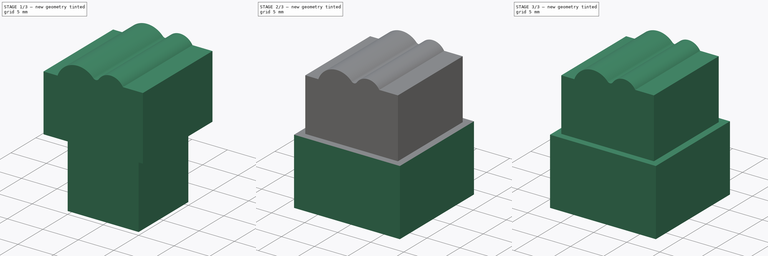
[diagram: build sequence overview — one tinted view per stage of 3, left to right]
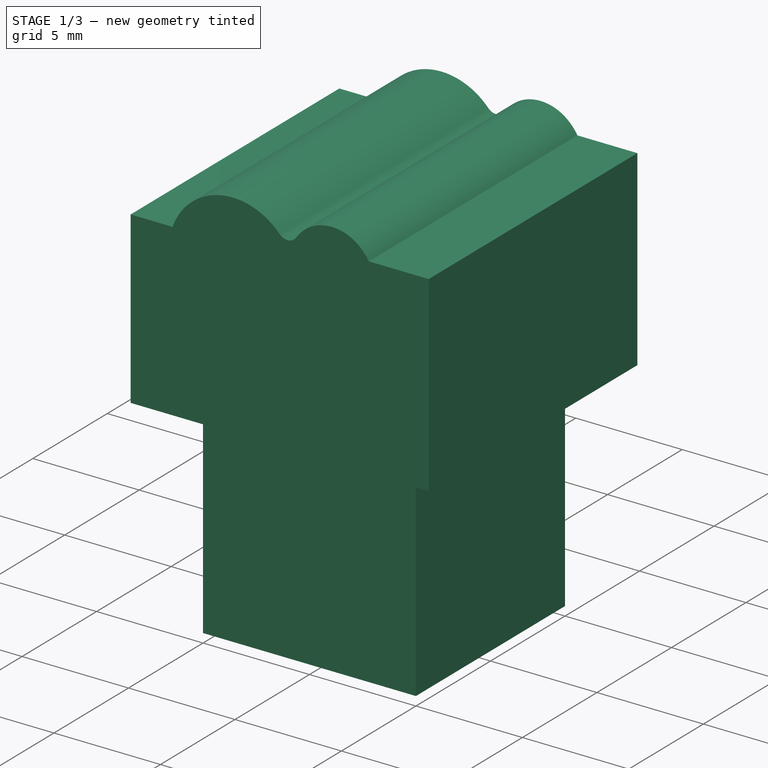
[diagram: stage 1 of 3 — iso view after this stage's code; geometry added in this stage tinted green]
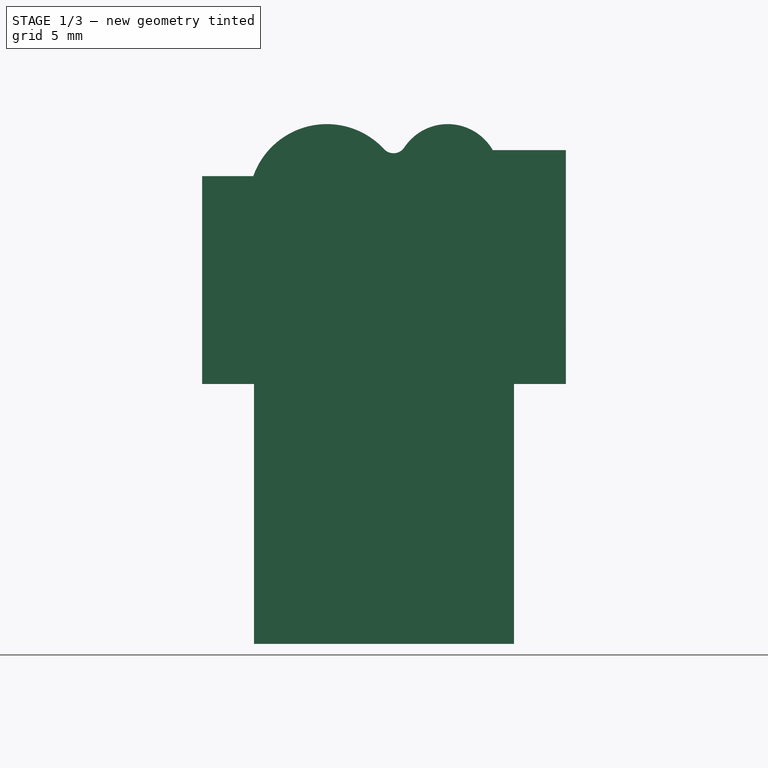
[diagram: stage 1 of 3 — front view after this stage's code; geometry added in this stage tinted green]
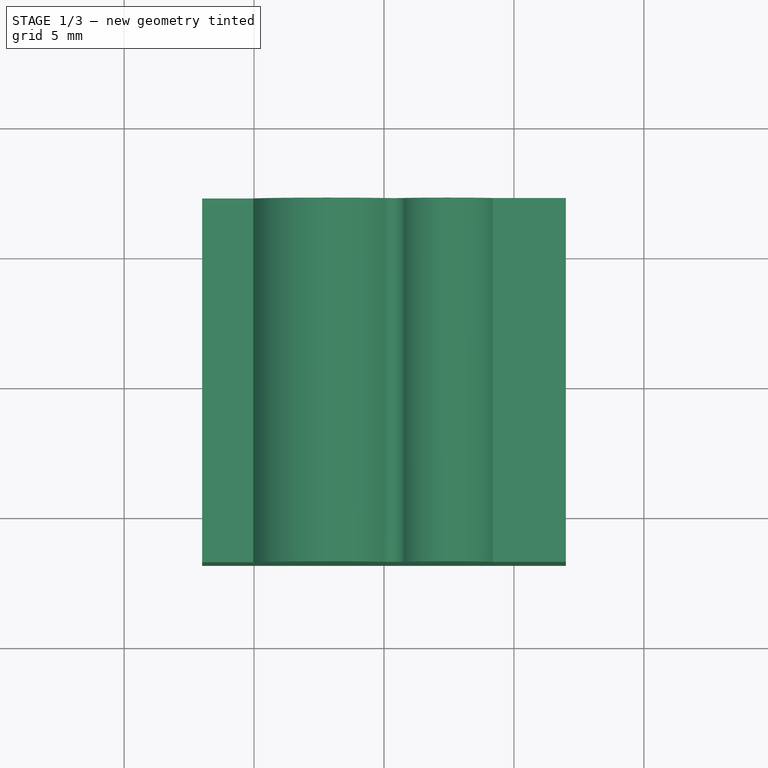
[diagram: stage 1 of 3 — top view after this stage's code; geometry added in this stage tinted green]
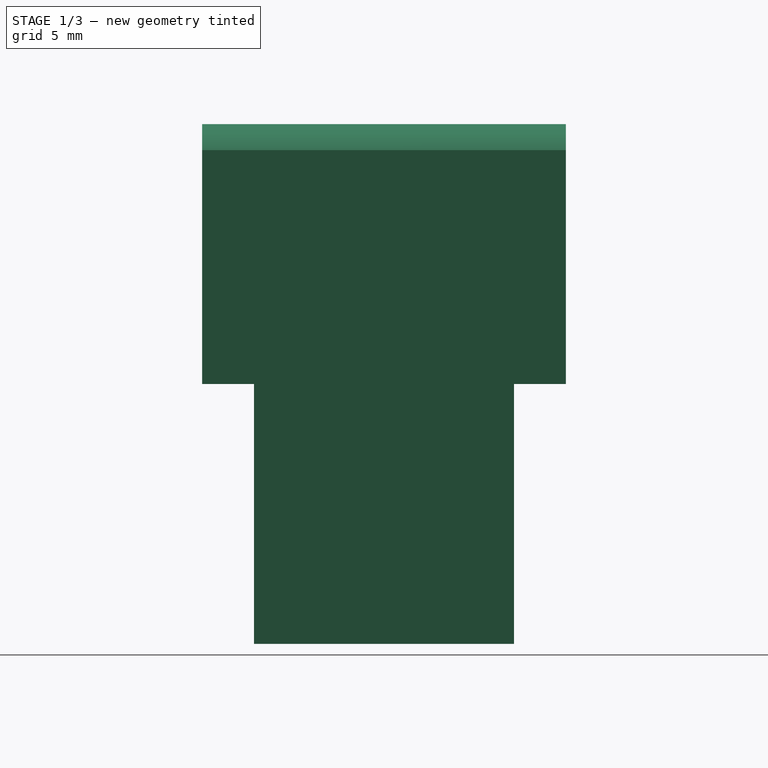
[diagram: stage 1 of 3 — right view after this stage's code; geometry added in this stage tinted green]
FCSTD DOCUMENT  (FreeCAD 0.18.3R)
Label: wave1
License: All rights reserved
LicenseURL: http://en.wikipedia.org/wiki/All_rights_reserved
objects: Part::Box×2, Sketcher::SketchObject×1, Part::Extrusion×1, Part::Fuse×1, Part::Cut×1
note: 6 computed .brp shape members not serialized (recipe doc carries the construction recipe); baked Part::Feature solids carry a one-line shape summary decoded from their .brp

FEATURE [Sketcher::SketchObject] Sketch
  Placement = pos=(-7,-7,0) rot=(1,0,0;1.5708rad)
  sketch-geometry (8):
    g0: ArcOfCircle CenterX=4.79997 CenterY=17 CenterZ=0 NormalX=0 NormalY=0 NormalZ=1 AngleXU=0 Radius=3 StartAngle=0.747571 EndAngle=2.80176
    g1: ArcOfCircle CenterX=9.45161 CenterY=18 CenterZ=0 NormalX=0 NormalY=0 NormalZ=1 AngleXU=0 Radius=2 StartAngle=0.523599 EndAngle=2.55707
    g2: ArcOfCircle CenterX=7.36667 CenterY=19.3795 CenterZ=0 NormalX=0 NormalY=0 NormalZ=1 AngleXU=0 Radius=0.5 StartAngle=3.88916 EndAngle=5.69866
    g3: LineSegment StartX=1.97154 StartY=18 StartZ=0 EndX=0 EndY=18 EndZ=0
    g4: LineSegment StartX=14 StartY=19 StartZ=0 EndX=11.1837 EndY=19 EndZ=0
    g5: LineSegment StartX=0 StartY=18 StartZ=0 EndX=0 EndY=10 EndZ=0
    g6: LineSegment StartX=0 StartY=10 StartZ=0 EndX=14 EndY=10 EndZ=0
    g7: LineSegment StartX=14 StartY=10 StartZ=0 EndX=14 EndY=19 EndZ=0
  constraints (23):
    c: Tangent(g2,g1) = 1.5708
    c: Tangent(g0,g2) = 1.5708
    c: Radius(g1) = 2
    c: Radius(g0) = 3
    c: Coincident(g4,g1)
    c: Horizontal(g3)
    c: Horizontal(g4)
    c: Coincident(g0,g3)
    c: Radius(g2) = 0.5
    c: DistanceX(g1,g1) = 3.4
    c: DistanceX(g3,g0) = 7
    c: Vertical(g7)
    c: Vertical(g5)
    c: Horizontal(g6)
    c: DistanceY(g7,g7) = 9
    c: Coincident(g6,g7)
    c: Coincident(g6,g5)
    c: DistanceX(g6,g6) = 14
    c: Coincident(g5,g3)
    c: Coincident(g7,g4)
    c: DistanceY(g5,g5) = 8
    c: DistanceY(g-1,g5) = 10
    c: PointOnObject(g5,g-2)
FEATURE [Part::Extrusion] Extrude
  Base = -> Sketch
  Dir = (0,-1,2e-16)
  DirMode = 2
  FaceMakerClass = Part::FaceMakerBullseye
  LengthFwd = 14
  LengthRev = 0
  Reversed = true
  Solid = true
  Symmetric = false
FEATURE [Part::Box] Box001  label="Cube001"
  AttacherType = Attacher::AttachEngine3D
  Height = 17
  Length = 10
  Placement = pos=(-5,-5,0) rot=(0,0,1;0rad)
  Width = 10
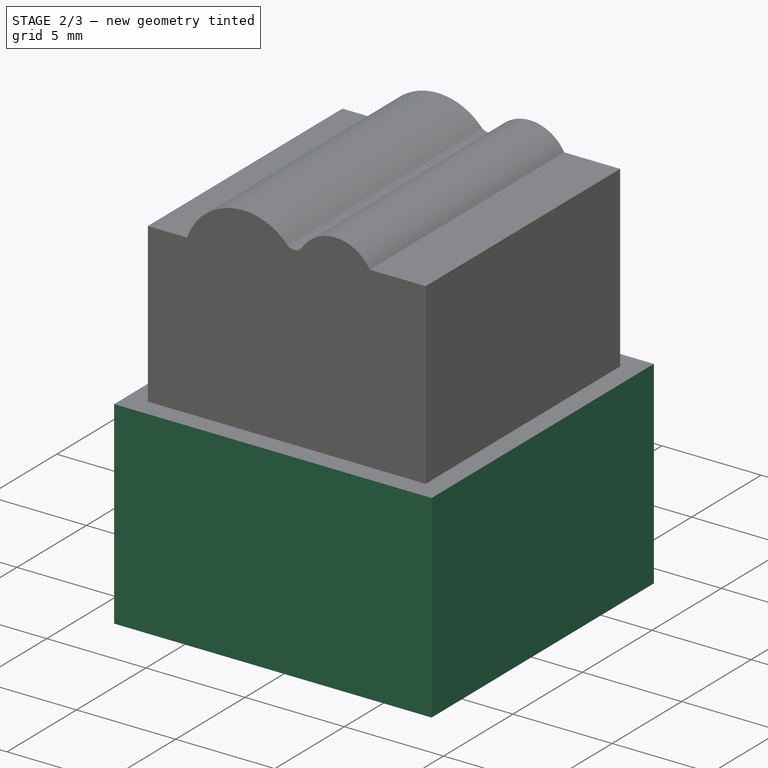
[diagram: stage 2 of 3 — iso view after this stage's code; geometry added in this stage tinted green]
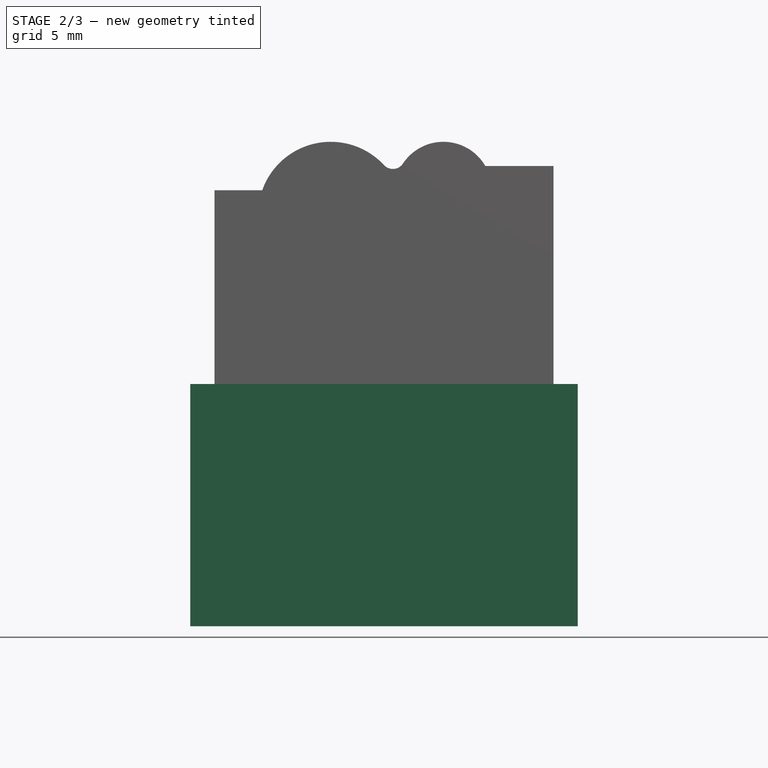
[diagram: stage 2 of 3 — front view after this stage's code; geometry added in this stage tinted green]
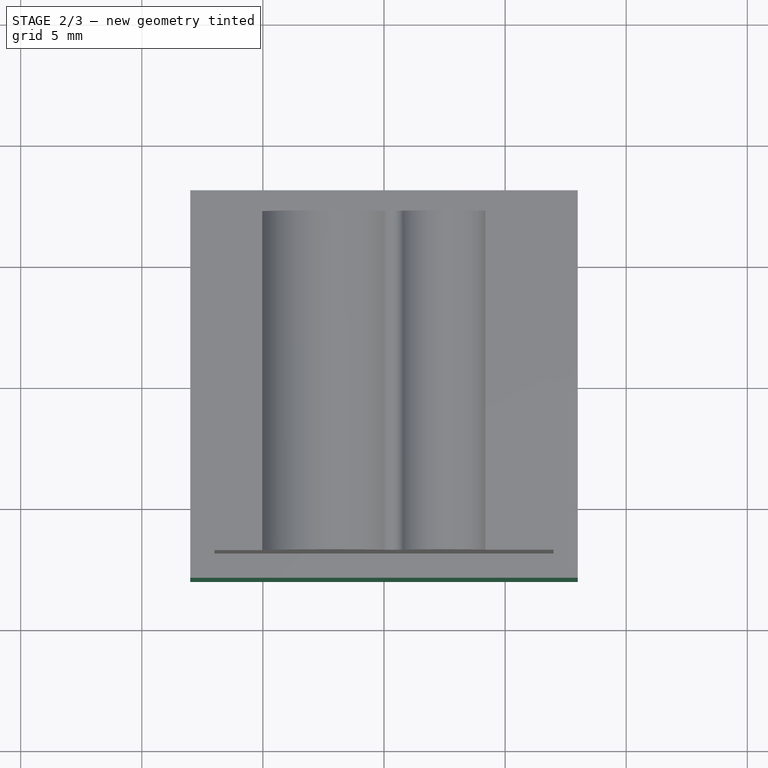
[diagram: stage 2 of 3 — top view after this stage's code; geometry added in this stage tinted green]
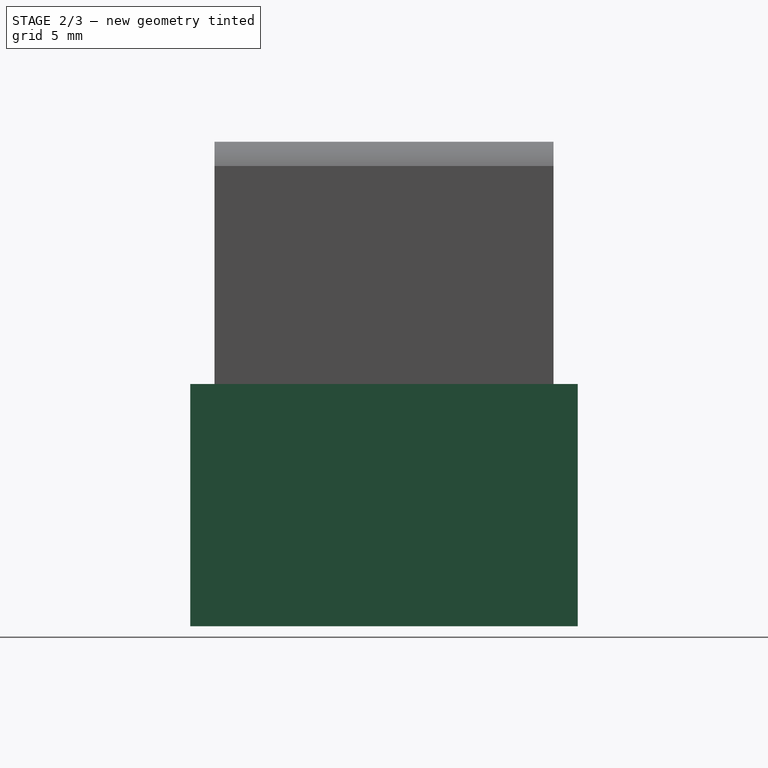
[diagram: stage 2 of 3 — right view after this stage's code; geometry added in this stage tinted green]
FEATURE [Part::Box] Box  label="Cube"
  AttacherType = Attacher::AttachEngine3D
  Height = 10
  Length = 16
  Placement = pos=(-8,-8,0) rot=(0,0,1;0rad)
  Width = 16
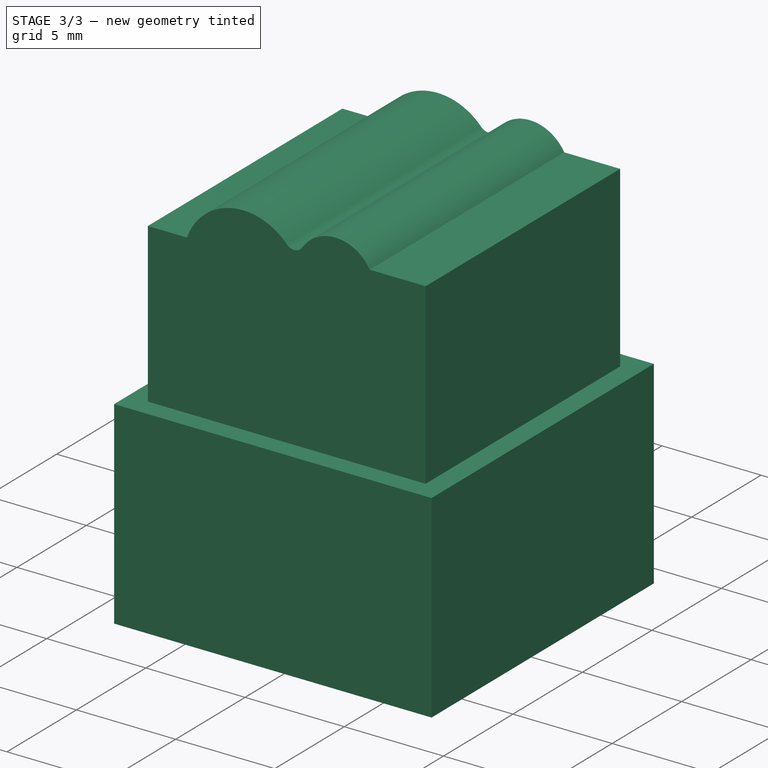
[diagram: stage 3 of 3 — iso view after this stage's code; geometry added in this stage tinted green]
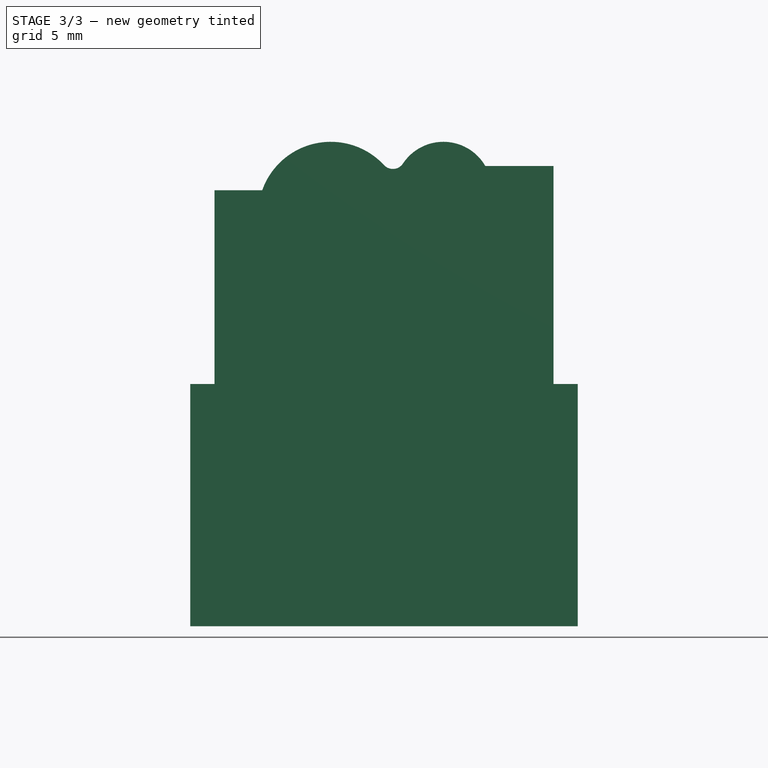
[diagram: stage 3 of 3 — front view after this stage's code; geometry added in this stage tinted green]
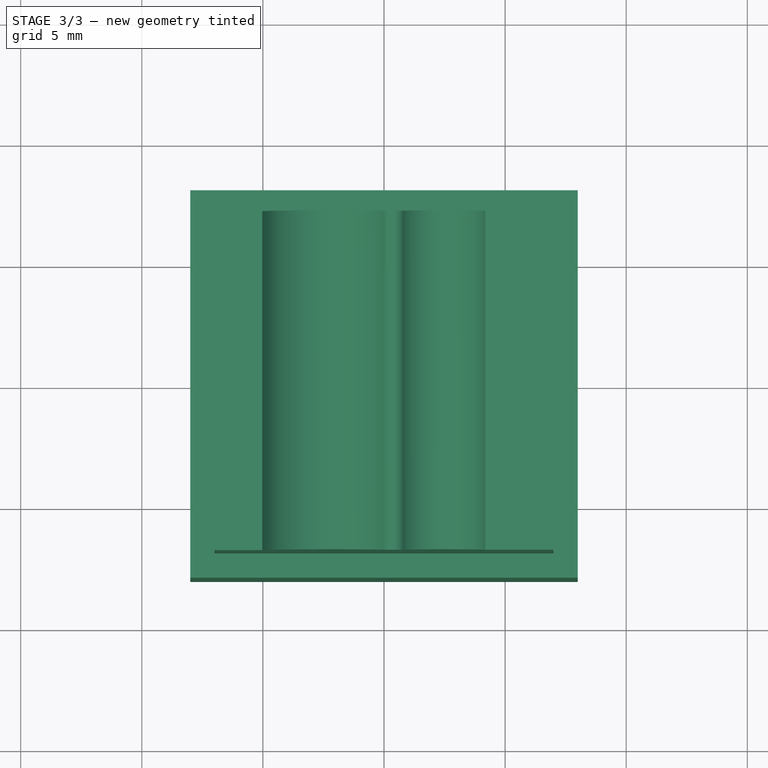
[diagram: stage 3 of 3 — top view after this stage's code; geometry added in this stage tinted green]
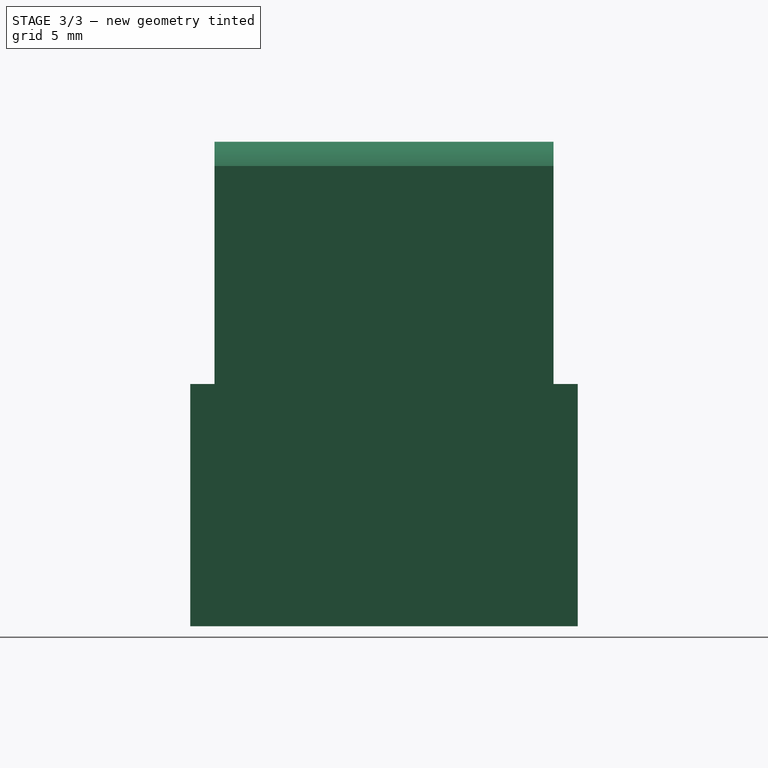
[diagram: stage 3 of 3 — right view after this stage's code; geometry added in this stage tinted green]
FEATURE [Part::Fuse] Fusion
  Base = -> Box
  Tool = -> Extrude
FEATURE [Part::Cut] Cut
  Base = -> Fusion
  Tool = -> Box001
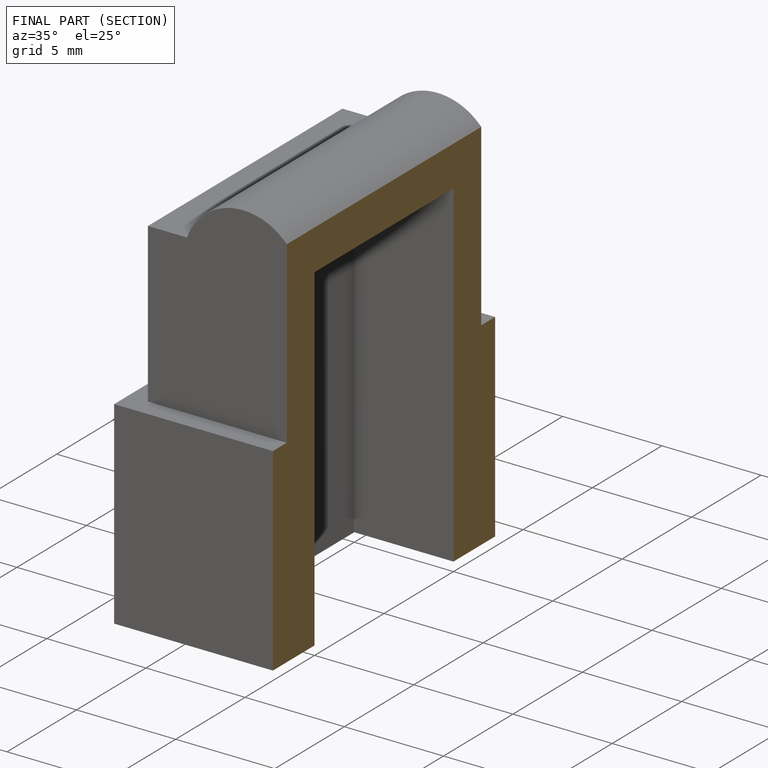
[diagram: finished part — half-section view (interior)]
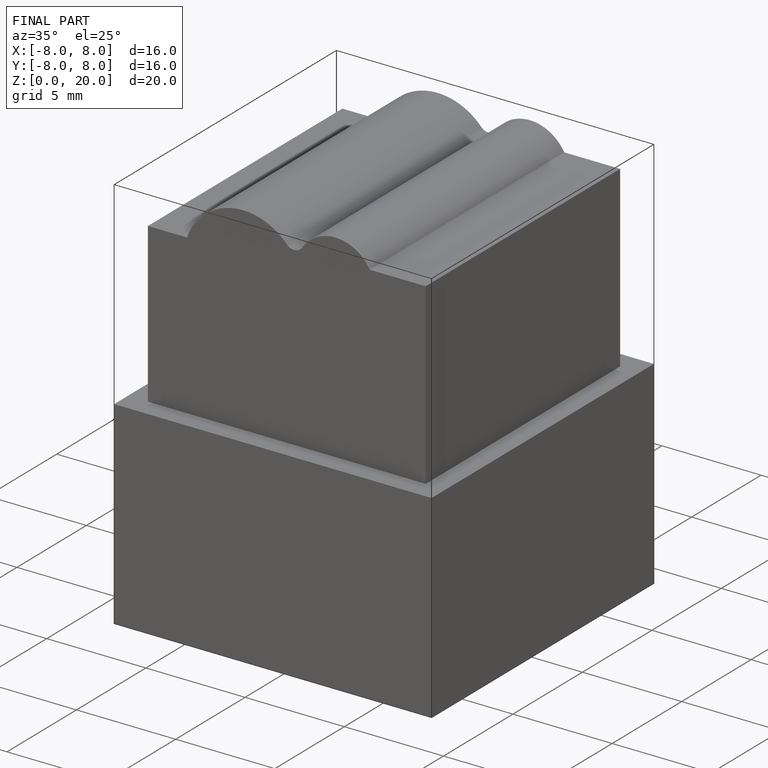
[diagram: finished part — iso view with bounding-box wireframe]
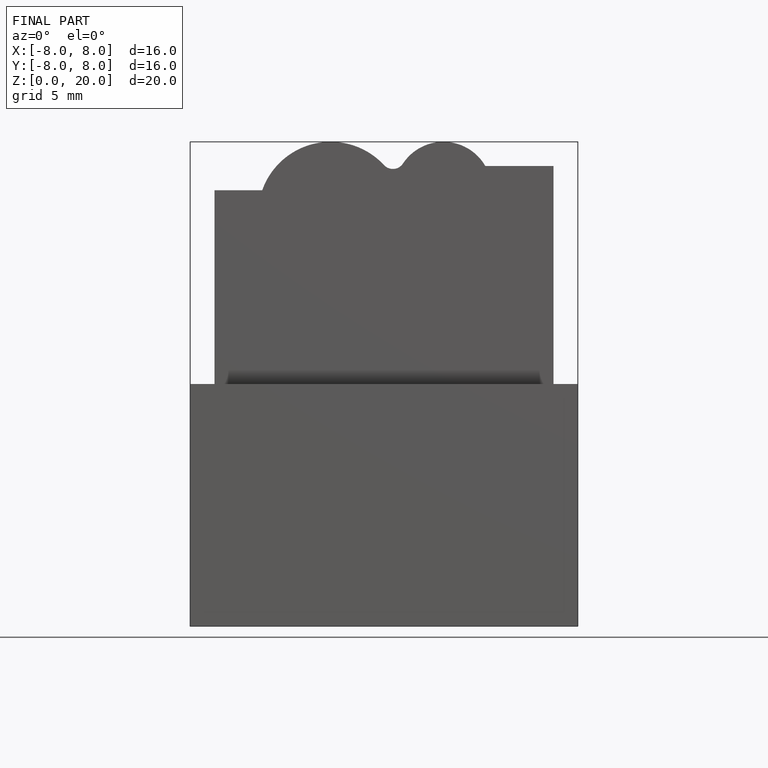
[diagram: finished part — front view with bounding-box wireframe]
